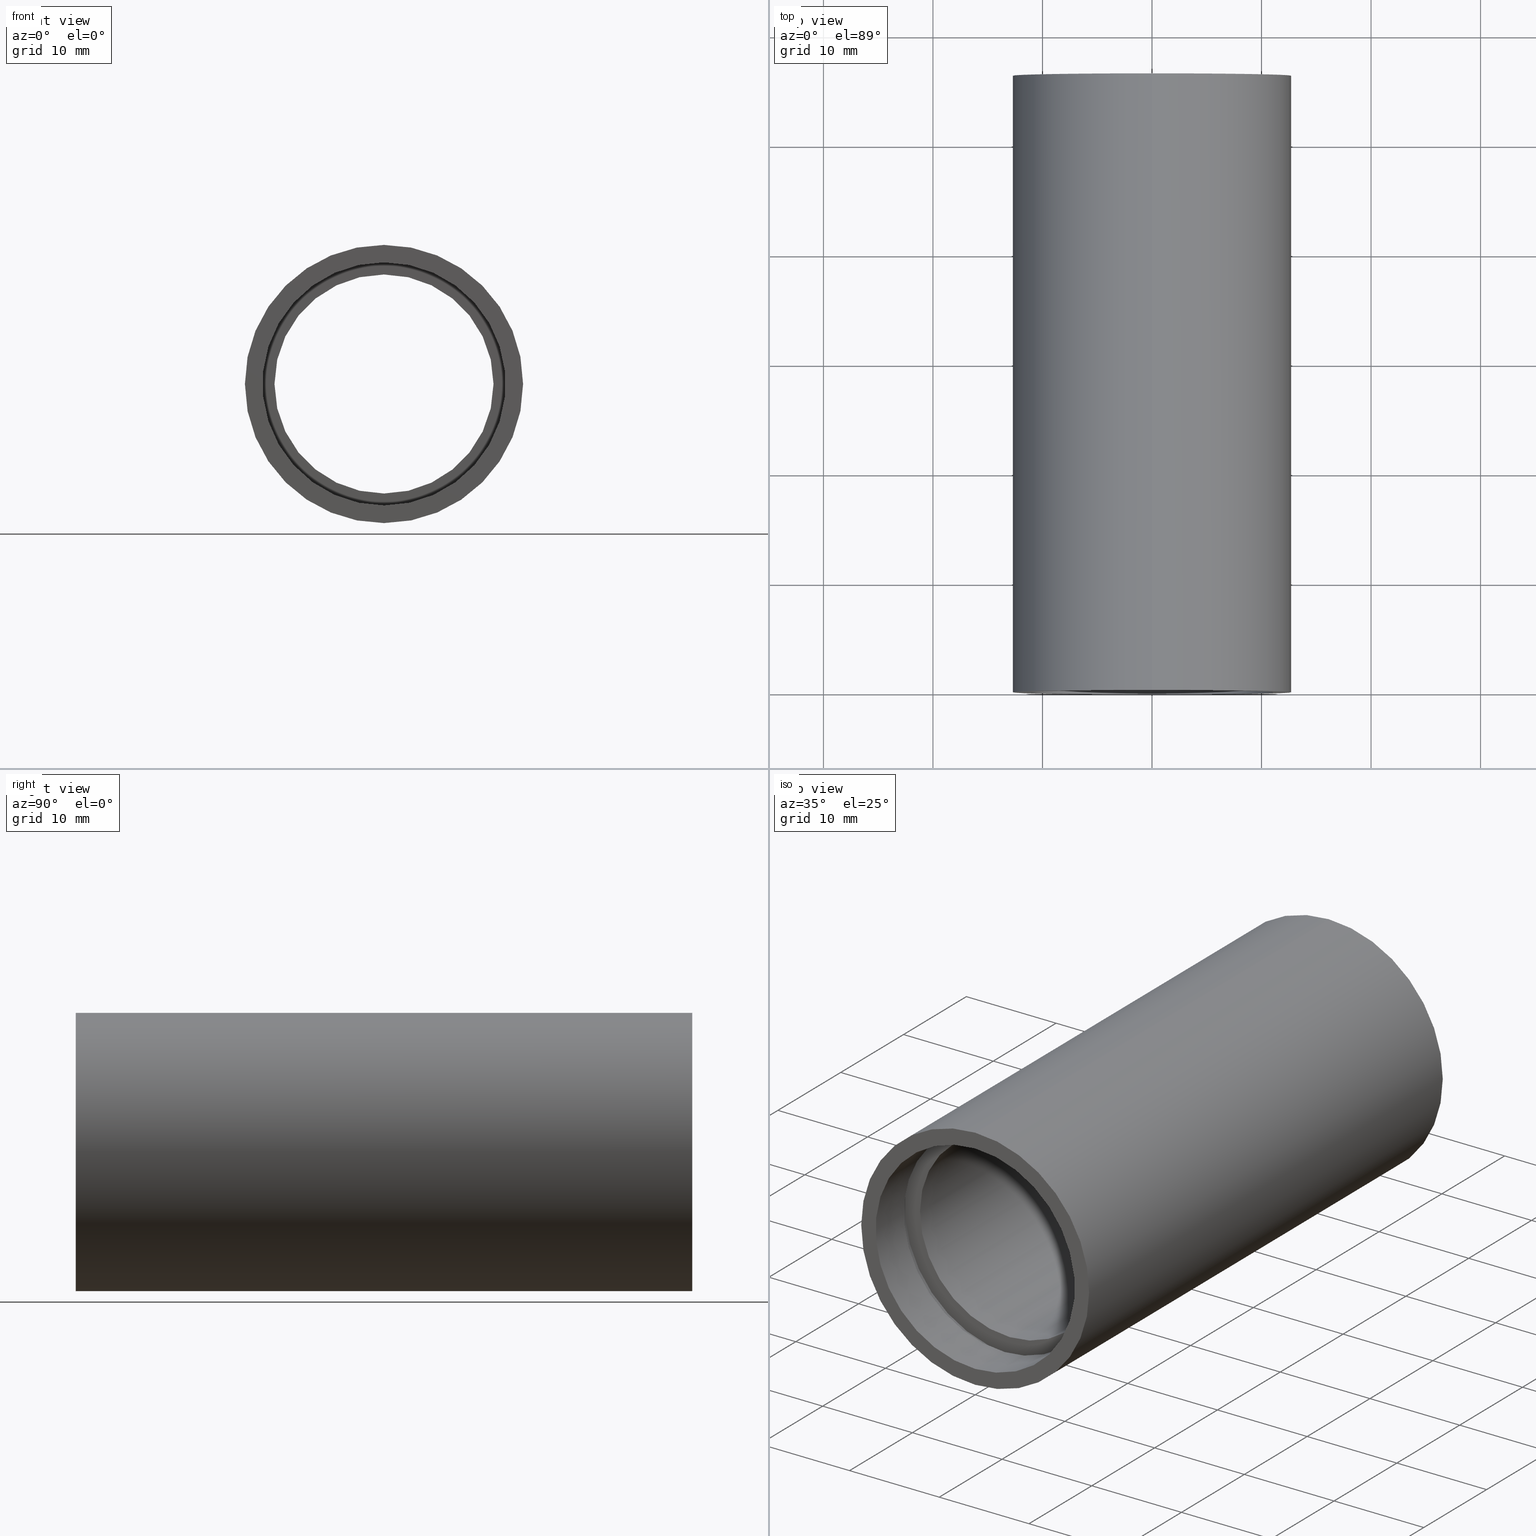
[diagram: canonical four-view strip — front | top / right | iso, engineering-drawing reading convention]
A machine part, canonical four-view strip (front | top / right | iso — engineering-drawing reading convention). The complete STEP part file that produces these views, byte-faithful:
ISO-10303-21;
HEADER;
FILE_DESCRIPTION (( 'STEP AP214' ),
    '1' );
FILE_NAME ('503062.STEP',
    '2019-09-09T02:34:38',
    ( '' ),
    ( '' ),
    'SwSTEP 2.0',
    'SolidWorks 2016',
    '' );
FILE_SCHEMA (( 'AUTOMOTIVE_DESIGN' ));
ENDSEC;

DATA;
#1 = ORIENTED_EDGE ( 'NONE', *, *, #16, .F. ) ;
#2 = DIRECTION ( 'NONE',  ( -0.0000000000000000000, 1.000000000000000000, -0.0000000000000000000 ) ) ;
#3 = FILL_AREA_STYLE_COLOUR ( '', #129 ) ;
#4 = EDGE_LOOP ( 'NONE', ( #275, #221 ) ) ;
#5 = STYLED_ITEM ( 'NONE', ( #70 ), #134 ) ;
#6 = ADVANCED_FACE ( 'NONE', ( #461 ), #346, .F. ) ;
#7 = DIRECTION ( 'NONE',  ( -0.0000000000000000000, 1.000000000000000000, -0.0000000000000000000 ) ) ;
#8 = DIRECTION ( 'NONE',  ( -0.0000000000000000000, 1.000000000000000000, -0.0000000000000000000 ) ) ;
#9 = ADVANCED_FACE ( 'NONE', ( #255, #315 ), #324, .F. ) ;
#10 = DIRECTION ( 'NONE',  ( 0.0000000000000000000, 0.0000000000000000000, 1.000000000000000000 ) ) ;
#11 =( GEOMETRIC_REPRESENTATION_CONTEXT ( 3 ) GLOBAL_UNCERTAINTY_ASSIGNED_CONTEXT ( ( #607 ) ) GLOBAL_UNIT_ASSIGNED_CONTEXT ( ( #344, #345, #291 ) ) REPRESENTATION_CONTEXT ( 'NONE', 'WORKASPACE' ) );
#12 = CARTESIAN_POINT ( 'NONE',  ( 0.0000000000000000000, 161.3761669434274500, 12.70000000000001900 ) ) ;
#13 = DIRECTION ( 'NONE',  ( -0.0000000000000000000, 1.000000000000000000, -0.0000000000000000000 ) ) ;
#14 = STYLED_ITEM ( 'NONE', ( #186 ), #106 ) ;
#15 = DIRECTION ( 'NONE',  ( 0.0000000000000000000, 0.0000000000000000000, 1.000000000000000000 ) ) ;
#16 = EDGE_CURVE ( 'NONE', #595, #178, #398, .T. ) ;
#17 = DIRECTION ( 'NONE',  ( 0.0000000000000000000, 0.0000000000000000000, 1.000000000000000000 ) ) ;
#18 = ORIENTED_EDGE ( 'NONE', *, *, #49, .F. ) ;
#19 = UNCERTAINTY_MEASURE_WITH_UNIT (LENGTH_MEASURE( 1.000000000000000100E-005 ), #364, 'distance_accuracy_value', 'NONE');
#20 = CIRCLE ( 'NONE', #322, 11.70000000000001000 ) ;
#21 = EDGE_LOOP ( 'NONE', ( #514, #173 ) ) ;
#22 = CARTESIAN_POINT ( 'NONE',  ( 11.10000000000001900, 4.499999999999983100, 0.0000000000000000000 ) ) ;
#23 = CIRCLE ( 'NONE', #592, 11.70000000000001000 ) ;
#24 = AXIS2_PLACEMENT_3D ( 'NONE', #101, #2, #384 ) ;
#25 = CARTESIAN_POINT ( 'NONE',  ( 0.0000000000000000000, 5.499999999999976900, 11.70000000000001700 ) ) ;
#26 = CIRCLE ( 'NONE', #531, 12.70000000000001900 ) ;
#27 = PRESENTATION_LAYER_ASSIGNMENT (  '', '', ( #331 ) ) ;
#28 = VECTOR ( 'NONE', #97, 1000.000000000000000 ) ;
#29 =( NAMED_UNIT ( * ) PLANE_ANGLE_UNIT ( ) SI_UNIT ( $, .RADIAN. ) );
#30 = ORIENTED_EDGE ( 'NONE', *, *, #549, .T. ) ;
#31 = PRESENTATION_STYLE_ASSIGNMENT (( #272 ) ) ;
#32 = VERTEX_POINT ( 'NONE', #122 ) ;
#33 = CARTESIAN_POINT ( 'NONE',  ( 0.0000000000000000000, 4.499999999999976000, 0.0000000000000000000 ) ) ;
#34 = FACE_OUTER_BOUND ( 'NONE', #189, .T. ) ;
#35 = CARTESIAN_POINT ( 'NONE',  ( 0.0000000000000000000, 161.3761669434274500, 10.00000000000002000 ) ) ;
#36 = LINE ( 'NONE', #373, #240 ) ;
#37 = VERTEX_POINT ( 'NONE', #417 ) ;
#38 = DIRECTION ( 'NONE',  ( 0.0000000000000000000, 0.0000000000000000000, 1.000000000000000000 ) ) ;
#39 = SURFACE_SIDE_STYLE ('',( #422 ) ) ;
#40 =( NAMED_UNIT ( * ) PLANE_ANGLE_UNIT ( ) SI_UNIT ( $, .RADIAN. ) );
#41 = CARTESIAN_POINT ( 'NONE',  ( 0.0000000000000000000, 56.29999999999999000, 11.60000000000003200 ) ) ;
#42 = APPLICATION_CONTEXT ( 'automotive_design' ) ;
#43 = VERTEX_POINT ( 'NONE', #132 ) ;
#44 = AXIS2_PLACEMENT_3D ( 'NONE', #427, #530, #236 ) ;
#45 = DIRECTION ( 'NONE',  ( 0.0000000000000000000, 0.0000000000000000000, 1.000000000000000000 ) ) ;
#46 = CARTESIAN_POINT ( 'NONE',  ( 0.0000000000000000000, 161.3761669434274500, 11.60000000000003300 ) ) ;
#47 = EDGE_LOOP ( 'NONE', ( #474, #561, #18, #550 ) ) ;
#48 = SURFACE_STYLE_FILL_AREA ( #357 ) ;
#49 = EDGE_CURVE ( 'NONE', #55, #169, #26, .T. ) ;
#50 = VECTOR ( 'NONE', #214, 1000.000000000000000 ) ;
#51 = AXIS2_PLACEMENT_3D ( 'NONE', #320, #67, #17 ) ;
#52 = ORIENTED_EDGE ( 'NONE', *, *, #257, .T. ) ;
#53 = AXIS2_PLACEMENT_3D ( 'NONE', #246, #299, #379 ) ;
#54 = CARTESIAN_POINT ( 'NONE',  ( 0.0000000000000000000, 56.29999999999999000, 0.0000000000000000000 ) ) ;
#55 = VERTEX_POINT ( 'NONE', #469 ) ;
#56 = ADVANCED_FACE ( 'NONE', ( #273 ), #613, .F. ) ;
#57 = VERTEX_POINT ( 'NONE', #156 ) ;
#58 =( GEOMETRIC_REPRESENTATION_CONTEXT ( 3 ) GLOBAL_UNCERTAINTY_ASSIGNED_CONTEXT ( ( #471 ) ) GLOBAL_UNIT_ASSIGNED_CONTEXT ( ( #277, #29, #256 ) ) REPRESENTATION_CONTEXT ( 'NONE', 'WORKASPACE' ) );
#59 = LINE ( 'NONE', #35, #463 ) ;
#60 = VECTOR ( 'NONE', #547, 1000.000000000000000 ) ;
#61 = ORIENTED_EDGE ( 'NONE', *, *, #258, .F. ) ;
#62 = ORIENTED_EDGE ( 'NONE', *, *, #95, .T. ) ;
#63 = DIRECTION ( 'NONE',  ( -0.0000000000000000000, 1.000000000000000000, -0.0000000000000000000 ) ) ;
#64 = ORIENTED_EDGE ( 'NONE', *, *, #161, .F. ) ;
#65 = DIRECTION ( 'NONE',  ( 0.0000000000000000000, 0.0000000000000000000, 1.000000000000000000 ) ) ;
#66 =( NAMED_UNIT ( * ) SI_UNIT ( $, .STERADIAN. ) SOLID_ANGLE_UNIT ( ) );
#67 = DIRECTION ( 'NONE',  ( -0.0000000000000000000, 1.000000000000000000, -0.0000000000000000000 ) ) ;
#68 = DIRECTION ( 'NONE',  ( -0.0000000000000000000, 1.000000000000000000, -0.0000000000000000000 ) ) ;
#69 = CARTESIAN_POINT ( 'NONE',  ( 10.00000000000002000, 50.79999999999997600, 0.0000000000000000000 ) ) ;
#70 = PRESENTATION_STYLE_ASSIGNMENT (( #119 ) ) ;
#71 = FACE_BOUND ( 'NONE', #175, .T. ) ;
#72 = CIRCLE ( 'NONE', #520, 12.70000000000001900 ) ;
#73 = AXIS2_PLACEMENT_3D ( 'NONE', #135, #181, #425 ) ;
#74 = FILL_AREA_STYLE ('',( #612 ) ) ;
#75 = COLOUR_RGB ( '',1.000000000000000000, 1.000000000000000000, 1.000000000000000000 ) ;
#76 = EDGE_CURVE ( 'NONE', #37, #314, #360, .T. ) ;
#77 = CARTESIAN_POINT ( 'NONE',  ( 1.359357947053564500E-015, 161.3761669434274500, -11.10000000000002100 ) ) ;
#78 = EDGE_LOOP ( 'NONE', ( #349, #458, #362, #309 ) ) ;
#79 = EDGE_CURVE ( 'NONE', #435, #57, #600, .T. ) ;
#80 = PRODUCT ( '503062', '503062', '', ( #146 ) ) ;
#81 = ORIENTED_EDGE ( 'NONE', *, *, #359, .F. ) ;
#82 = DIRECTION ( 'NONE',  ( -0.0000000000000000000, 1.000000000000000000, -0.0000000000000000000 ) ) ;
#83 = DIRECTION ( 'NONE',  ( -0.0000000000000000000, 1.000000000000000000, -0.0000000000000000000 ) ) ;
#84 = DIRECTION ( 'NONE',  ( -0.0000000000000000000, 1.000000000000000000, -0.0000000000000000000 ) ) ;
#85 = CARTESIAN_POINT ( 'NONE',  ( 1.359357947053564900E-015, -2.775557561562891400E-014, -11.10000000000002300 ) ) ;
#86 = AXIS2_PLACEMENT_3D ( 'NONE', #243, #96, #581 ) ;
#87 = FILL_AREA_STYLE_COLOUR ( '', #182 ) ;
#88 = VERTEX_POINT ( 'NONE', #206 ) ;
#89 = CYLINDRICAL_SURFACE ( 'NONE', #73, 10.00000000000002000 ) ;
#90 = DIRECTION ( 'NONE',  ( 0.0000000000000000000, 0.0000000000000000000, 1.000000000000000000 ) ) ;
#91 = CIRCLE ( 'NONE', #527, 10.00000000000002000 ) ;
#92 = DIRECTION ( 'NONE',  ( 0.0000000000000000000, 0.0000000000000000000, 1.000000000000000000 ) ) ;
#93 = EDGE_CURVE ( 'NONE', #102, #169, #109, .T. ) ;
#94 = DIRECTION ( 'NONE',  ( 0.0000000000000000000, 0.0000000000000000000, 1.000000000000000000 ) ) ;
#95 = EDGE_CURVE ( 'NONE', #88, #178, #565, .T. ) ;
#96 = DIRECTION ( 'NONE',  ( -0.0000000000000000000, 1.000000000000000000, 0.0000000000000000000 ) ) ;
#97 = DIRECTION ( 'NONE',  ( -0.0000000000000000000, 1.000000000000000000, -0.0000000000000000000 ) ) ;
#98 = CIRCLE ( 'NONE', #366, 11.10000000000002300 ) ;
#99 = ORIENTED_EDGE ( 'NONE', *, *, #462, .T. ) ;
#100 = EDGE_LOOP ( 'NONE', ( #223, #526, #393, #336 ) ) ;
#101 = CARTESIAN_POINT ( 'NONE',  ( 0.0000000000000000000, 161.3761669434274500, 0.0000000000000000000 ) ) ;
#102 = VERTEX_POINT ( 'NONE', #308 ) ;
#103 = CARTESIAN_POINT ( 'NONE',  ( 0.0000000000000000000, -2.775557561562891400E-014, 11.10000000000002300 ) ) ;
#104 = FACE_OUTER_BOUND ( 'NONE', #437, .T. ) ;
#105 = DIRECTION ( 'NONE',  ( -0.0000000000000000000, 1.000000000000000000, -0.0000000000000000000 ) ) ;
#106 = ADVANCED_FACE ( 'NONE', ( #241 ), #591, .F. ) ;
#107 = DIRECTION ( 'NONE',  ( 0.0000000000000000000, 0.0000000000000000000, 1.000000000000000000 ) ) ;
#108 = CARTESIAN_POINT ( 'NONE',  ( 0.0000000000000000000, 50.79999999999998300, 10.00000000000002000 ) ) ;
#109 = LINE ( 'NONE', #312, #60 ) ;
#110 = PRESENTATION_LAYER_ASSIGNMENT (  '', '', ( #252 ) ) ;
#111 = DIRECTION ( 'NONE',  ( -0.0000000000000000000, 1.000000000000000000, -0.0000000000000000000 ) ) ;
#112 = ORIENTED_EDGE ( 'NONE', *, *, #518, .F. ) ;
#113 = DIRECTION ( 'NONE',  ( -0.0000000000000000000, 1.000000000000000000, -0.0000000000000000000 ) ) ;
#114 = DIRECTION ( 'NONE',  ( -0.0000000000000000000, 1.000000000000000000, -0.0000000000000000000 ) ) ;
#115 = EDGE_CURVE ( 'NONE', #539, #558, #340, .T. ) ;
#116 = ORIENTED_EDGE ( 'NONE', *, *, #597, .F. ) ;
#117 = DIRECTION ( 'NONE',  ( 0.0000000000000000000, 0.0000000000000000000, 1.000000000000000000 ) ) ;
#118 = EDGE_CURVE ( 'NONE', #567, #402, #610, .T. ) ;
#119 = SURFACE_STYLE_USAGE ( .BOTH. , #217 ) ;
#120 = AXIS2_PLACEMENT_3D ( 'NONE', #602, #63, #251 ) ;
#121 = FILL_AREA_STYLE_COLOUR ( '', #237 ) ;
#122 = CARTESIAN_POINT ( 'NONE',  ( 1.432836755002405500E-015, 5.499999999999976900, -11.70000000000001700 ) ) ;
#123 = CARTESIAN_POINT ( 'NONE',  ( 0.0000000000000000000, 50.79999999999998300, 11.70000000000001000 ) ) ;
#124 = FACE_OUTER_BOUND ( 'NONE', #47, .T. ) ;
#125 = AXIS2_PLACEMENT_3D ( 'NONE', #535, #244, #90 ) ;
#126 = ADVANCED_FACE ( 'NONE', ( #34, #200 ), #453, .F. ) ;
#127 = MECHANICAL_DESIGN_GEOMETRIC_PRESENTATION_REPRESENTATION (  '', ( #147 ), #624 ) ;
#128 = EDGE_CURVE ( 'NONE', #558, #567, #268, .T. ) ;
#129 = COLOUR_RGB ( '',1.000000000000000000, 1.000000000000000000, 1.000000000000000000 ) ;
#130 = DIRECTION ( 'NONE',  ( 0.0000000000000000000, 0.0000000000000000000, 1.000000000000000000 ) ) ;
#131 = EDGE_LOOP ( 'NONE', ( #1, #64, #606, #62 ) ) ;
#132 = CARTESIAN_POINT ( 'NONE',  ( 0.0000000000000000000, 51.79999999999998300, 11.70000000000001000 ) ) ;
#133 = CARTESIAN_POINT ( 'NONE',  ( 0.0000000000000000000, -2.775557561562891400E-014, 12.70000000000001900 ) ) ;
#134 = MANIFOLD_SOLID_BREP ( '��ת1', #604 ) ;
#135 = CARTESIAN_POINT ( 'NONE',  ( 0.0000000000000000000, 161.3761669434274500, 0.0000000000000000000 ) ) ;
#136 = ORIENTED_EDGE ( 'NONE', *, *, #415, .F. ) ;
#137 = ORIENTED_EDGE ( 'NONE', *, *, #227, .F. ) ;
#138 = DIRECTION ( 'NONE',  ( -0.0000000000000000000, 1.000000000000000000, -0.0000000000000000000 ) ) ;
#139 = PRESENTATION_STYLE_ASSIGNMENT (( #476 ) ) ;
#140 = DIRECTION ( 'NONE',  ( -0.0000000000000000000, 1.000000000000000000, -0.0000000000000000000 ) ) ;
#141 = CARTESIAN_POINT ( 'NONE',  ( 0.0000000000000000000, 4.499999999999976000, 0.0000000000000000000 ) ) ;
#142 = CARTESIAN_POINT ( 'NONE',  ( 0.0000000000000000000, 5.499999999999976900, 10.00000000000002000 ) ) ;
#143 = APPLICATION_PROTOCOL_DEFINITION ( 'draft international standard', 'automotive_design', 1998, #434 ) ;
#144 = AXIS2_PLACEMENT_3D ( 'NONE', #490, #140, #382 ) ;
#145 = CARTESIAN_POINT ( 'NONE',  ( 0.0000000000000000000, -2.775557561562891400E-014, 0.0000000000000000000 ) ) ;
#146 = PRODUCT_CONTEXT ( 'NONE', #434, 'mechanical' ) ;
#147 = STYLED_ITEM ( 'NONE', ( #413 ), #6 ) ;
#148 = CARTESIAN_POINT ( 'NONE',  ( 1.432836755002405500E-015, 161.3761669434274500, -11.70000000000001700 ) ) ;
#149 = ORIENTED_EDGE ( 'NONE', *, *, #498, .F. ) ;
#150 = PRODUCT_RELATED_PRODUCT_CATEGORY ( 'part', '', ( #80 ) ) ;
#151 = FACE_BOUND ( 'NONE', #317, .T. ) ;
#152 = AXIS2_PLACEMENT_3D ( 'NONE', #305, #220, #405 ) ;
#153 = ORIENTED_EDGE ( 'NONE', *, *, #489, .T. ) ;
#154 = ADVANCED_FACE ( 'NONE', ( #378 ), #485, .F. ) ;
#155 = CARTESIAN_POINT ( 'NONE',  ( 11.70000000000001700, 5.499999999999984000, 0.0000000000000000000 ) ) ;
#156 = CARTESIAN_POINT ( 'NONE',  ( 1.224646799147355400E-015, 50.79999999999998300, -10.00000000000002000 ) ) ;
#157 = CARTESIAN_POINT ( 'NONE',  ( 0.0000000000000000000, -2.775557561562891400E-014, 0.0000000000000000000 ) ) ;
#158 = AXIS2_PLACEMENT_3D ( 'NONE', #524, #83, #38 ) ;
#159 = CARTESIAN_POINT ( 'NONE',  ( 0.0000000000000000000, 4.499999999999976000, 0.0000000000000000000 ) ) ;
#160 = FILL_AREA_STYLE_COLOUR ( '', #436 ) ;
#161 = EDGE_CURVE ( 'NONE', #215, #595, #361, .T. ) ;
#162 = PLANE ( 'NONE',  #441 ) ;
#163 = ORIENTED_EDGE ( 'NONE', *, *, #560, .T. ) ;
#164 = EDGE_CURVE ( 'NONE', #374, #55, #211, .T. ) ;
#165 = CYLINDRICAL_SURFACE ( 'NONE', #125, 11.70000000000001700 ) ;
#166 =( NAMED_UNIT ( * ) PLANE_ANGLE_UNIT ( ) SI_UNIT ( $, .RADIAN. ) );
#167 = DIRECTION ( 'NONE',  ( 0.0000000000000000000, 0.0000000000000000000, 1.000000000000000000 ) ) ;
#168 = ORIENTED_EDGE ( 'NONE', *, *, #115, .F. ) ;
#169 = VERTEX_POINT ( 'NONE', #355 ) ;
#170 = DIRECTION ( 'NONE',  ( -0.0000000000000000000, 1.000000000000000000, -0.0000000000000000000 ) ) ;
#171 = DIRECTION ( 'NONE',  ( 0.0000000000000000000, 0.0000000000000000000, 1.000000000000000000 ) ) ;
#172 = FACE_OUTER_BOUND ( 'NONE', #470, .T. ) ;
#173 = ORIENTED_EDGE ( 'NONE', *, *, #462, .F. ) ;
#174 = DIRECTION ( 'NONE',  ( 0.0000000000000000000, 0.0000000000000000000, 1.000000000000000000 ) ) ;
#175 = EDGE_LOOP ( 'NONE', ( #456, #326 ) ) ;
#176 = COLOUR_RGB ( '',1.000000000000000000, 1.000000000000000000, 1.000000000000000000 ) ;
#177 =( NAMED_UNIT ( * ) SI_UNIT ( $, .STERADIAN. ) SOLID_ANGLE_UNIT ( ) );
#178 = VERTEX_POINT ( 'NONE', #204 ) ;
#179 = PRESENTATION_LAYER_ASSIGNMENT (  '', '', ( #14 ) ) ;
#180 = EDGE_LOOP ( 'NONE', ( #488, #335, #163, #61 ) ) ;
#181 = DIRECTION ( 'NONE',  ( -0.0000000000000000000, 1.000000000000000000, -0.0000000000000000000 ) ) ;
#182 = COLOUR_RGB ( '',1.000000000000000000, 1.000000000000000000, 1.000000000000000000 ) ;
#183 = ORIENTED_EDGE ( 'NONE', *, *, #489, .F. ) ;
#184 = EDGE_LOOP ( 'NONE', ( #137, #231, #603, #112 ) ) ;
#185 = DIRECTION ( 'NONE',  ( -0.0000000000000000000, 1.000000000000000000, -0.0000000000000000000 ) ) ;
#186 = PRESENTATION_STYLE_ASSIGNMENT (( #358 ) ) ;
#187 = AXIS2_PLACEMENT_3D ( 'NONE', #33, #82, #523 ) ;
#188 = DIRECTION ( 'NONE',  ( 1.000000000000000000, 0.0000000000000000000, 0.0000000000000000000 ) ) ;
#189 = EDGE_LOOP ( 'NONE', ( #266, #183 ) ) ;
#190 = DIRECTION ( 'NONE',  ( 0.0000000000000000000, 0.0000000000000000000, 1.000000000000000000 ) ) ;
#191 = AXIS2_PLACEMENT_3D ( 'NONE', #416, #274, #608 ) ;
#192 = EDGE_CURVE ( 'NONE', #32, #338, #601, .T. ) ;
#193 = DIRECTION ( 'NONE',  ( -0.0000000000000000000, 1.000000000000000000, -0.0000000000000000000 ) ) ;
#194 = DIRECTION ( 'NONE',  ( -0.0000000000000000000, 1.000000000000000000, -0.0000000000000000000 ) ) ;
#195 = PRODUCT_DEFINITION_FORMATION_WITH_SPECIFIED_SOURCE ( '�κ�', '', #80, .NOT_KNOWN. ) ;
#196 = CYLINDRICAL_SURFACE ( 'NONE', #540, 11.10000000000002100 ) ;
#197 = ORIENTED_EDGE ( 'NONE', *, *, #93, .F. ) ;
#198 = DIRECTION ( 'NONE',  ( 0.0000000000000000000, 0.0000000000000000000, 1.000000000000000000 ) ) ;
#199 = CARTESIAN_POINT ( 'NONE',  ( 0.0000000000000000000, 161.3761669434274500, 0.0000000000000000000 ) ) ;
#200 = FACE_BOUND ( 'NONE', #568, .T. ) ;
#201 = DIRECTION ( 'NONE',  ( -0.0000000000000000000, 1.000000000000000000, -0.0000000000000000000 ) ) ;
#202 = SURFACE_STYLE_FILL_AREA ( #74 ) ;
#203 = CIRCLE ( 'NONE', #225, 12.70000000000001900 ) ;
#204 = CARTESIAN_POINT ( 'NONE',  ( 1.359357947053564500E-015, 4.499999999999976000, -11.10000000000001900 ) ) ;
#205 = ADVANCED_FACE ( 'NONE', ( #316, #151 ), #162, .F. ) ;
#206 = CARTESIAN_POINT ( 'NONE',  ( 0.0000000000000000000, 4.499999999999976000, 11.10000000000001900 ) ) ;
#207 = CARTESIAN_POINT ( 'NONE',  ( 0.0000000000000000000, 50.79999999999998300, 0.0000000000000000000 ) ) ;
#208 = AXIS2_PLACEMENT_3D ( 'NONE', #579, #293, #430 ) ;
#209 = DIRECTION ( 'NONE',  ( -0.0000000000000000000, 1.000000000000000000, -0.0000000000000000000 ) ) ;
#210 = CARTESIAN_POINT ( 'NONE',  ( 1.432836755002404700E-015, 51.79999999999998300, -11.70000000000001000 ) ) ;
#211 = LINE ( 'NONE', #12, #228 ) ;
#212 = EDGE_LOOP ( 'NONE', ( #431, #544, #562, #576 ) ) ;
#213 = ORIENTED_EDGE ( 'NONE', *, *, #451, .F. ) ;
#214 = DIRECTION ( 'NONE',  ( -0.0000000000000000000, 1.000000000000000000, -0.0000000000000000000 ) ) ;
#215 = VERTEX_POINT ( 'NONE', #103 ) ;
#216 = CARTESIAN_POINT ( 'NONE',  ( 0.0000000000000000000, -2.775557561562891400E-014, 0.0000000000000000000 ) ) ;
#217 = SURFACE_SIDE_STYLE ('',( #222 ) ) ;
#218 = AXIS2_PLACEMENT_3D ( 'NONE', #157, #501, #493 ) ;
#219 =( LENGTH_UNIT ( ) NAMED_UNIT ( * ) SI_UNIT ( .MILLI., .METRE. ) );
#220 = DIRECTION ( 'NONE',  ( -0.0000000000000000000, 1.000000000000000000, 0.0000000000000000000 ) ) ;
#221 = ORIENTED_EDGE ( 'NONE', *, *, #359, .T. ) ;
#222 = SURFACE_STYLE_FILL_AREA ( #506 ) ;
#223 = ORIENTED_EDGE ( 'NONE', *, *, #296, .F. ) ;
#224 = CIRCLE ( 'NONE', #187, 11.70000000000001700 ) ;
#225 = AXIS2_PLACEMENT_3D ( 'NONE', #145, #193, #45 ) ;
#226 = AXIS2_PLACEMENT_3D ( 'NONE', #22, #509, #333 ) ;
#227 = EDGE_CURVE ( 'NONE', #558, #539, #403, .T. ) ;
#228 = VECTOR ( 'NONE', #201, 1000.000000000000000 ) ;
#229 = SURFACE_SIDE_STYLE ('',( #483 ) ) ;
#230 = ORIENTED_EDGE ( 'NONE', *, *, #560, .F. ) ;
#231 = ORIENTED_EDGE ( 'NONE', *, *, #128, .T. ) ;
#232 = FILL_AREA_STYLE_COLOUR ( '', #176 ) ;
#233 = ORIENTED_EDGE ( 'NONE', *, *, #582, .F. ) ;
#234 = DIRECTION ( 'NONE',  ( 0.0000000000000000000, 0.0000000000000000000, 1.000000000000000000 ) ) ;
#235 =( LENGTH_UNIT ( ) NAMED_UNIT ( * ) SI_UNIT ( .MILLI., .METRE. ) );
#236 = DIRECTION ( 'NONE',  ( 0.0000000000000000000, 0.0000000000000000000, 1.000000000000000000 ) ) ;
#237 = COLOUR_RGB ( '',1.000000000000000000, 1.000000000000000000, 1.000000000000000000 ) ;
#238 = CARTESIAN_POINT ( 'NONE',  ( 1.224646799147355400E-015, 5.499999999999976900, -10.00000000000002000 ) ) ;
#239 =( NAMED_UNIT ( * ) PLANE_ANGLE_UNIT ( ) SI_UNIT ( $, .RADIAN. ) );
#240 = VECTOR ( 'NONE', #170, 1000.000000000000000 ) ;
#241 = FACE_OUTER_BOUND ( 'NONE', #350, .T. ) ;
#242 = AXIS2_PLACEMENT_3D ( 'NONE', #141, #580, #387 ) ;
#243 = CARTESIAN_POINT ( 'NONE',  ( 11.10000000000002300, -1.590039098016662300E-014, 0.0000000000000000000 ) ) ;
#244 = DIRECTION ( 'NONE',  ( -0.0000000000000000000, 1.000000000000000000, -0.0000000000000000000 ) ) ;
#245 = EDGE_LOOP ( 'NONE', ( #197, #99, #536, #81 ) ) ;
#246 = CARTESIAN_POINT ( 'NONE',  ( 0.0000000000000000000, 50.79999999999998300, 0.0000000000000000000 ) ) ;
#247 = UNCERTAINTY_MEASURE_WITH_UNIT (LENGTH_MEASURE( 1.000000000000000100E-005 ), #457, 'distance_accuracy_value', 'NONE');
#248 = MECHANICAL_DESIGN_GEOMETRIC_PRESENTATION_REPRESENTATION (  '', ( #14 ), #392 ) ;
#249 = DIRECTION ( 'NONE',  ( -0.0000000000000000000, 1.000000000000000000, 0.0000000000000000000 ) ) ;
#250 = COLOUR_RGB ( '',1.000000000000000000, 1.000000000000000000, 1.000000000000000000 ) ;
#251 = DIRECTION ( 'NONE',  ( 0.0000000000000000000, 0.0000000000000000000, 1.000000000000000000 ) ) ;
#252 = STYLED_ITEM ( 'NONE', ( #139 ), #444 ) ;
#253 = UNCERTAINTY_MEASURE_WITH_UNIT (LENGTH_MEASURE( 1.000000000000000100E-005 ), #529, 'distance_accuracy_value', 'NONE');
#254 = ADVANCED_FACE ( 'NONE', ( #466 ), #584, .F. ) ;
#255 = FACE_BOUND ( 'NONE', #522, .T. ) ;
#256 =( NAMED_UNIT ( * ) SI_UNIT ( $, .STERADIAN. ) SOLID_ANGLE_UNIT ( ) );
#257 = EDGE_CURVE ( 'NONE', #329, #409, #20, .T. ) ;
#258 = EDGE_CURVE ( 'NONE', #215, #88, #347, .T. ) ;
#259 = ORIENTED_EDGE ( 'NONE', *, *, #227, .T. ) ;
#260 =( NAMED_UNIT ( * ) SI_UNIT ( $, .STERADIAN. ) SOLID_ANGLE_UNIT ( ) );
#261 = FILL_AREA_STYLE_COLOUR ( '', #75 ) ;
#262 = CARTESIAN_POINT ( 'NONE',  ( 0.0000000000000000000, 4.499999999999976000, 0.0000000000000000000 ) ) ;
#263 = CARTESIAN_POINT ( 'NONE',  ( 0.0000000000000000000, -2.775557561562891400E-014, 0.0000000000000000000 ) ) ;
#264 = PLANE ( 'NONE',  #447 ) ;
#265 =( NAMED_UNIT ( * ) SI_UNIT ( $, .STERADIAN. ) SOLID_ANGLE_UNIT ( ) );
#266 = ORIENTED_EDGE ( 'NONE', *, *, #389, .F. ) ;
#267 =( NAMED_UNIT ( * ) SI_UNIT ( $, .STERADIAN. ) SOLID_ANGLE_UNIT ( ) );
#268 = LINE ( 'NONE', #369, #406 ) ;
#269 = DIRECTION ( 'NONE',  ( 0.0000000000000000000, -0.0000000000000000000, -1.000000000000000000 ) ) ;
#270 = PRODUCT_DEFINITION_CONTEXT ( 'detailed design', #42, 'design' ) ;
#271 = CYLINDRICAL_SURFACE ( 'NONE', #24, 12.70000000000001900 ) ;
#272 = SURFACE_STYLE_USAGE ( .BOTH. , #365 ) ;
#273 = FACE_OUTER_BOUND ( 'NONE', #131, .T. ) ;
#274 = DIRECTION ( 'NONE',  ( -0.0000000000000000000, 1.000000000000000000, -0.0000000000000000000 ) ) ;
#275 = ORIENTED_EDGE ( 'NONE', *, *, #49, .T. ) ;
#276 = FACE_OUTER_BOUND ( 'NONE', #212, .T. ) ;
#277 =( LENGTH_UNIT ( ) NAMED_UNIT ( * ) SI_UNIT ( .MILLI., .METRE. ) );
#278 = DIRECTION ( 'NONE',  ( -0.0000000000000000000, 1.000000000000000000, -0.0000000000000000000 ) ) ;
#279 = ORIENTED_EDGE ( 'NONE', *, *, #498, .T. ) ;
#280 =( NAMED_UNIT ( * ) PLANE_ANGLE_UNIT ( ) SI_UNIT ( $, .RADIAN. ) );
#281 = EDGE_CURVE ( 'NONE', #409, #289, #452, .T. ) ;
#282 = SURFACE_STYLE_FILL_AREA ( #313 ) ;
#283 = PRESENTATION_LAYER_ASSIGNMENT (  '', '', ( #454 ) ) ;
#284 = PRESENTATION_STYLE_ASSIGNMENT (( #477 ) ) ;
#285 = AXIS2_PLACEMENT_3D ( 'NONE', #542, #598, #10 ) ;
#286 = DIRECTION ( 'NONE',  ( -0.0000000000000000000, 1.000000000000000000, -0.0000000000000000000 ) ) ;
#287 = DIRECTION ( 'NONE',  ( 0.0000000000000000000, 0.0000000000000000000, 1.000000000000000000 ) ) ;
#288 = LINE ( 'NONE', #46, #433 ) ;
#289 = VERTEX_POINT ( 'NONE', #210 ) ;
#290 = DIRECTION ( 'NONE',  ( 0.0000000000000000000, 0.0000000000000000000, 1.000000000000000000 ) ) ;
#291 =( NAMED_UNIT ( * ) SI_UNIT ( $, .STERADIAN. ) SOLID_ANGLE_UNIT ( ) );
#292 = AXIS2_PLACEMENT_3D ( 'NONE', #337, #138, #290 ) ;
#293 = DIRECTION ( 'NONE',  ( -0.0000000000000000000, 1.000000000000000000, -0.0000000000000000000 ) ) ;
#294 = EDGE_CURVE ( 'NONE', #595, #215, #98, .T. ) ;
#295 = DIRECTION ( 'NONE',  ( -0.0000000000000000000, 1.000000000000000000, -0.0000000000000000000 ) ) ;
#296 = EDGE_CURVE ( 'NONE', #435, #467, #537, .T. ) ;
#297 = MECHANICAL_DESIGN_GEOMETRIC_PRESENTATION_REPRESENTATION (  '', ( #5 ), #334 ) ;
#298 = VERTEX_POINT ( 'NONE', #108 ) ;
#299 = DIRECTION ( 'NONE',  ( -0.0000000000000000000, 1.000000000000000000, -0.0000000000000000000 ) ) ;
#300 = EDGE_LOOP ( 'NONE', ( #363, #504 ) ) ;
#301 = SHAPE_DEFINITION_REPRESENTATION ( #621, #618 ) ;
#302 = CIRCLE ( 'NONE', #242, 11.10000000000001900 ) ;
#303 = EDGE_LOOP ( 'NONE', ( #136, #213 ) ) ;
#304 = ADVANCED_FACE ( 'NONE', ( #421 ), #196, .F. ) ;
#305 = CARTESIAN_POINT ( 'NONE',  ( 11.60000000000003300, 51.79999999999997600, 0.0000000000000000000 ) ) ;
#306 = CARTESIAN_POINT ( 'NONE',  ( 0.0000000000000000000, 161.3761669434274500, 0.0000000000000000000 ) ) ;
#307 = ADVANCED_FACE ( 'NONE', ( #508, #432 ), #557, .F. ) ;
#308 = CARTESIAN_POINT ( 'NONE',  ( 1.555301434917140800E-015, -2.775557561562891400E-014, -12.70000000000001900 ) ) ;
#309 = ORIENTED_EDGE ( 'NONE', *, *, #389, .T. ) ;
#310 = CIRCLE ( 'NONE', #208, 10.00000000000002000 ) ;
#311 = DIRECTION ( 'NONE',  ( -0.0000000000000000000, 1.000000000000000000, -0.0000000000000000000 ) ) ;
#312 = CARTESIAN_POINT ( 'NONE',  ( 1.555301434917140800E-015, 161.3761669434274500, -12.70000000000001900 ) ) ;
#313 = FILL_AREA_STYLE ('',( #261 ) ) ;
#314 = VERTEX_POINT ( 'NONE', #510 ) ;
#315 = FACE_OUTER_BOUND ( 'NONE', #619, .T. ) ;
#316 = FACE_OUTER_BOUND ( 'NONE', #300, .T. ) ;
#317 = EDGE_LOOP ( 'NONE', ( #521, #445 ) ) ;
#318 = ORIENTED_EDGE ( 'NONE', *, *, #118, .F. ) ;
#319 = EDGE_CURVE ( 'NONE', #329, #43, #36, .T. ) ;
#320 = CARTESIAN_POINT ( 'NONE',  ( 0.0000000000000000000, 161.3761669434274500, 0.0000000000000000000 ) ) ;
#321 = UNCERTAINTY_MEASURE_WITH_UNIT (LENGTH_MEASURE( 1.000000000000000100E-005 ), #235, 'distance_accuracy_value', 'NONE');
#322 = AXIS2_PLACEMENT_3D ( 'NONE', #207, #311, #15 ) ;
#323 = SURFACE_STYLE_FILL_AREA ( #478 ) ;
#324 = PLANE ( 'NONE',  #226 ) ;
#325 = ORIENTED_EDGE ( 'NONE', *, *, #79, .F. ) ;
#326 = ORIENTED_EDGE ( 'NONE', *, *, #294, .T. ) ;
#327 =( NAMED_UNIT ( * ) PLANE_ANGLE_UNIT ( ) SI_UNIT ( $, .RADIAN. ) );
#328 = AXIS2_PLACEMENT_3D ( 'NONE', #390, #194, #583 ) ;
#329 = VERTEX_POINT ( 'NONE', #123 ) ;
#330 = CIRCLE ( 'NONE', #513, 12.70000000000001900 ) ;
#331 = STYLED_ITEM ( 'NONE', ( #512 ), #56 ) ;
#332 = EDGE_CURVE ( 'NONE', #374, #102, #72, .T. ) ;
#333 = DIRECTION ( 'NONE',  ( 0.0000000000000000000, -0.0000000000000000000, -1.000000000000000000 ) ) ;
#334 =( GEOMETRIC_REPRESENTATION_CONTEXT ( 3 ) GLOBAL_UNCERTAINTY_ASSIGNED_CONTEXT ( ( #247 ) ) GLOBAL_UNIT_ASSIGNED_CONTEXT ( ( #457, #459, #265 ) ) REPRESENTATION_CONTEXT ( 'NONE', 'WORKASPACE' ) );
#335 = ORIENTED_EDGE ( 'NONE', *, *, #16, .T. ) ;
#336 = ORIENTED_EDGE ( 'NONE', *, *, #386, .F. ) ;
#337 = CARTESIAN_POINT ( 'NONE',  ( 0.0000000000000000000, 161.3761669434274500, 0.0000000000000000000 ) ) ;
#338 = VERTEX_POINT ( 'NONE', #25 ) ;
#339 = PLANE ( 'NONE',  #86 ) ;
#340 = CIRCLE ( 'NONE', #120, 11.60000000000003300 ) ;
#341 = COLOUR_RGB ( '',1.000000000000000000, 1.000000000000000000, 1.000000000000000000 ) ;
#342 = CYLINDRICAL_SURFACE ( 'NONE', #44, 12.70000000000001900 ) ;
#343 = CARTESIAN_POINT ( 'NONE',  ( 0.0000000000000000000, 5.499999999999976900, 0.0000000000000000000 ) ) ;
#344 =( LENGTH_UNIT ( ) NAMED_UNIT ( * ) SI_UNIT ( .MILLI., .METRE. ) );
#345 =( NAMED_UNIT ( * ) PLANE_ANGLE_UNIT ( ) SI_UNIT ( $, .RADIAN. ) );
#346 = CYLINDRICAL_SURFACE ( 'NONE', #191, 10.00000000000002000 ) ;
#347 = LINE ( 'NONE', #399, #551 ) ;
#348 = CARTESIAN_POINT ( 'NONE',  ( 1.420590287010933900E-015, 51.79999999999998300, -11.60000000000003300 ) ) ;
#349 = ORIENTED_EDGE ( 'NONE', *, *, #281, .F. ) ;
#350 = EDGE_LOOP ( 'NONE', ( #468, #168, #377, #279 ) ) ;
#351 = EDGE_CURVE ( 'NONE', #338, #32, #380, .T. ) ;
#352 = STYLED_ITEM ( 'NONE', ( #31 ), #304 ) ;
#353 = ORIENTED_EDGE ( 'NONE', *, *, #415, .T. ) ;
#354 = ADVANCED_FACE ( 'NONE', ( #371, #104 ), #264, .F. ) ;
#355 = CARTESIAN_POINT ( 'NONE',  ( 1.555301434917140800E-015, 56.29999999999999000, -12.70000000000001900 ) ) ;
#356 = CIRCLE ( 'NONE', #611, 11.70000000000001000 ) ;
#357 = FILL_AREA_STYLE ('',( #160 ) ) ;
#358 = SURFACE_STYLE_USAGE ( .BOTH. , #545 ) ;
#359 = EDGE_CURVE ( 'NONE', #169, #55, #330, .T. ) ;
#360 = CIRCLE ( 'NONE', #515, 11.70000000000001700 ) ;
#361 = CIRCLE ( 'NONE', #218, 11.10000000000002300 ) ;
#362 = ORIENTED_EDGE ( 'NONE', *, *, #319, .T. ) ;
#363 = ORIENTED_EDGE ( 'NONE', *, *, #351, .F. ) ;
#364 =( LENGTH_UNIT ( ) NAMED_UNIT ( * ) SI_UNIT ( .MILLI., .METRE. ) );
#365 = SURFACE_SIDE_STYLE ('',( #282 ) ) ;
#366 = AXIS2_PLACEMENT_3D ( 'NONE', #263, #113, #167 ) ;
#367 = DIRECTION ( 'NONE',  ( 0.0000000000000000000, 0.0000000000000000000, 1.000000000000000000 ) ) ;
#368 = UNCERTAINTY_MEASURE_WITH_UNIT (LENGTH_MEASURE( 1.000000000000000100E-005 ), #219, 'distance_accuracy_value', 'NONE');
#369 = CARTESIAN_POINT ( 'NONE',  ( 1.420590287010933900E-015, 161.3761669434274500, -11.60000000000003300 ) ) ;
#370 = DIRECTION ( 'NONE',  ( 0.0000000000000000000, 0.0000000000000000000, 1.000000000000000000 ) ) ;
#371 = FACE_BOUND ( 'NONE', #303, .T. ) ;
#372 = SURFACE_STYLE_USAGE ( .BOTH. , #507 ) ;
#373 = CARTESIAN_POINT ( 'NONE',  ( 0.0000000000000000000, 161.3761669434274500, 11.70000000000001000 ) ) ;
#374 = VERTEX_POINT ( 'NONE', #133 ) ;
#375 = FILL_AREA_STYLE ('',( #232 ) ) ;
#376 = AXIS2_PLACEMENT_3D ( 'NONE', #306, #7, #500 ) ;
#377 = ORIENTED_EDGE ( 'NONE', *, *, #518, .T. ) ;
#378 = FACE_OUTER_BOUND ( 'NONE', #78, .T. ) ;
#379 = DIRECTION ( 'NONE',  ( 0.0000000000000000000, 0.0000000000000000000, 1.000000000000000000 ) ) ;
#380 = CIRCLE ( 'NONE', #588, 11.70000000000001700 ) ;
#381 = CARTESIAN_POINT ( 'NONE',  ( 1.432836755002404700E-015, 50.79999999999998300, -11.70000000000001000 ) ) ;
#382 = DIRECTION ( 'NONE',  ( 0.0000000000000000000, 0.0000000000000000000, 1.000000000000000000 ) ) ;
#383 = STYLED_ITEM ( 'NONE', ( #479 ), #397 ) ;
#384 = DIRECTION ( 'NONE',  ( 0.0000000000000000000, 0.0000000000000000000, 1.000000000000000000 ) ) ;
#385 = VECTOR ( 'NONE', #111, 1000.000000000000000 ) ;
#386 = EDGE_CURVE ( 'NONE', #467, #298, #59, .T. ) ;
#387 = DIRECTION ( 'NONE',  ( 0.0000000000000000000, 0.0000000000000000000, 1.000000000000000000 ) ) ;
#388 = EDGE_LOOP ( 'NONE', ( #149, #318 ) ) ;
#389 = EDGE_CURVE ( 'NONE', #43, #289, #356, .T. ) ;
#390 = CARTESIAN_POINT ( 'NONE',  ( 0.0000000000000000000, 56.29999999999999000, 0.0000000000000000000 ) ) ;
#391 =( GEOMETRIC_REPRESENTATION_CONTEXT ( 3 ) GLOBAL_UNCERTAINTY_ASSIGNED_CONTEXT ( ( #253 ) ) GLOBAL_UNIT_ASSIGNED_CONTEXT ( ( #529, #239, #574 ) ) REPRESENTATION_CONTEXT ( 'NONE', 'WORKASPACE' ) );
#392 =( GEOMETRIC_REPRESENTATION_CONTEXT ( 3 ) GLOBAL_UNCERTAINTY_ASSIGNED_CONTEXT ( ( #19 ) ) GLOBAL_UNIT_ASSIGNED_CONTEXT ( ( #364, #166, #260 ) ) REPRESENTATION_CONTEXT ( 'NONE', 'WORKASPACE' ) );
#393 = ORIENTED_EDGE ( 'NONE', *, *, #451, .T. ) ;
#394 = ORIENTED_EDGE ( 'NONE', *, *, #115, .T. ) ;
#395 = ADVANCED_FACE ( 'NONE', ( #525 ), #342, .T. ) ;
#396 = LINE ( 'NONE', #148, #497 ) ;
#397 = ADVANCED_FACE ( 'NONE', ( #563 ), #89, .F. ) ;
#398 = LINE ( 'NONE', #77, #465 ) ;
#399 = CARTESIAN_POINT ( 'NONE',  ( 0.0000000000000000000, 161.3761669434274500, 11.10000000000002100 ) ) ;
#400 = DIRECTION ( 'NONE',  ( -0.0000000000000000000, 1.000000000000000000, -0.0000000000000000000 ) ) ;
#401 = DIRECTION ( 'NONE',  ( -0.0000000000000000000, 1.000000000000000000, -0.0000000000000000000 ) ) ;
#402 = VERTEX_POINT ( 'NONE', #41 ) ;
#403 = CIRCLE ( 'NONE', #285, 11.60000000000003300 ) ;
#404 = ORIENTED_EDGE ( 'NONE', *, *, #449, .T. ) ;
#405 = DIRECTION ( 'NONE',  ( 0.0000000000000000000, 0.0000000000000000000, 1.000000000000000000 ) ) ;
#406 = VECTOR ( 'NONE', #553, 1000.000000000000000 ) ;
#407 = AXIS2_PLACEMENT_3D ( 'NONE', #199, #114, #367 ) ;
#408 = CARTESIAN_POINT ( 'NONE',  ( 0.0000000000000000000, 161.3761669434274500, 0.0000000000000000000 ) ) ;
#409 = VERTEX_POINT ( 'NONE', #381 ) ;
#410 =( NAMED_UNIT ( * ) PLANE_ANGLE_UNIT ( ) SI_UNIT ( $, .RADIAN. ) );
#411 = CARTESIAN_POINT ( 'NONE',  ( 11.60000000000003200, 56.29999999999998300, 0.0000000000000000000 ) ) ;
#412 = MECHANICAL_DESIGN_GEOMETRIC_PRESENTATION_REPRESENTATION (  '', ( #383 ), #543 ) ;
#413 = PRESENTATION_STYLE_ASSIGNMENT (( #372 ) ) ;
#414 = SURFACE_STYLE_FILL_AREA ( #572 ) ;
#415 = EDGE_CURVE ( 'NONE', #298, #57, #596, .T. ) ;
#416 = CARTESIAN_POINT ( 'NONE',  ( 0.0000000000000000000, 161.3761669434274500, 0.0000000000000000000 ) ) ;
#417 = CARTESIAN_POINT ( 'NONE',  ( 1.432836755002405500E-015, 4.499999999999976000, -11.70000000000001700 ) ) ;
#418 = PRODUCT_DEFINITION ( 'δ֪', '', #195, #270 ) ;
#419 = AXIS2_PLACEMENT_3D ( 'NONE', #450, #401, #117 ) ;
#420 = ORIENTED_EDGE ( 'NONE', *, *, #95, .F. ) ;
#421 = FACE_OUTER_BOUND ( 'NONE', #180, .T. ) ;
#422 = SURFACE_STYLE_FILL_AREA ( #487 ) ;
#423 = UNCERTAINTY_MEASURE_WITH_UNIT (LENGTH_MEASURE( 1.000000000000000100E-005 ), #554, 'distance_accuracy_value', 'NONE');
#424 = FACE_OUTER_BOUND ( 'NONE', #21, .T. ) ;
#425 = DIRECTION ( 'NONE',  ( 0.0000000000000000000, 0.0000000000000000000, 1.000000000000000000 ) ) ;
#426 = CARTESIAN_POINT ( 'NONE',  ( 0.0000000000000000000, 161.3761669434274500, 11.70000000000001700 ) ) ;
#427 = CARTESIAN_POINT ( 'NONE',  ( 0.0000000000000000000, 161.3761669434274500, 0.0000000000000000000 ) ) ;
#428 = PRESENTATION_LAYER_ASSIGNMENT (  '', '', ( #147 ) ) ;
#429 = CARTESIAN_POINT ( 'NONE',  ( 0.0000000000000000000, 0.0000000000000000000, 0.0000000000000000000 ) ) ;
#430 = DIRECTION ( 'NONE',  ( 0.0000000000000000000, 0.0000000000000000000, 1.000000000000000000 ) ) ;
#431 = ORIENTED_EDGE ( 'NONE', *, *, #549, .F. ) ;
#432 = FACE_OUTER_BOUND ( 'NONE', #4, .T. ) ;
#433 = VECTOR ( 'NONE', #295, 1000.000000000000000 ) ;
#434 = APPLICATION_CONTEXT ( 'automotive_design' ) ;
#435 = VERTEX_POINT ( 'NONE', #238 ) ;
#436 = COLOUR_RGB ( '',1.000000000000000000, 1.000000000000000000, 1.000000000000000000 ) ;
#437 = EDGE_LOOP ( 'NONE', ( #52, #589 ) ) ;
#438 = ORIENTED_EDGE ( 'NONE', *, *, #281, .T. ) ;
#439 = EDGE_CURVE ( 'NONE', #467, #435, #91, .T. ) ;
#440 = EDGE_LOOP ( 'NONE', ( #442, #30, #586, #116 ) ) ;
#441 = AXIS2_PLACEMENT_3D ( 'NONE', #155, #249, #590 ) ;
#442 = ORIENTED_EDGE ( 'NONE', *, *, #76, .F. ) ;
#443 = CARTESIAN_POINT ( 'NONE',  ( 0.0000000000000000000, 161.3761669434274500, 0.0000000000000000000 ) ) ;
#444 = ADVANCED_FACE ( 'NONE', ( #446 ), #546, .F. ) ;
#445 = ORIENTED_EDGE ( 'NONE', *, *, #296, .T. ) ;
#446 = FACE_OUTER_BOUND ( 'NONE', #184, .T. ) ;
#447 = AXIS2_PLACEMENT_3D ( 'NONE', #69, #516, #555 ) ;
#448 = CARTESIAN_POINT ( 'NONE',  ( 1.224646799147355400E-015, 161.3761669434274500, -10.00000000000002000 ) ) ;
#449 = EDGE_CURVE ( 'NONE', #314, #37, #224, .T. ) ;
#450 = CARTESIAN_POINT ( 'NONE',  ( 0.0000000000000000000, 5.499999999999976900, 0.0000000000000000000 ) ) ;
#451 = EDGE_CURVE ( 'NONE', #57, #298, #310, .T. ) ;
#452 = LINE ( 'NONE', #502, #50 ) ;
#453 = PLANE ( 'NONE',  #152 ) ;
#454 = STYLED_ITEM ( 'NONE', ( #284 ), #618 ) ;
#455 = PRESENTATION_LAYER_ASSIGNMENT (  '', '', ( #5 ) ) ;
#456 = ORIENTED_EDGE ( 'NONE', *, *, #161, .T. ) ;
#457 =( LENGTH_UNIT ( ) NAMED_UNIT ( * ) SI_UNIT ( .MILLI., .METRE. ) );
#458 = ORIENTED_EDGE ( 'NONE', *, *, #257, .F. ) ;
#459 =( NAMED_UNIT ( * ) PLANE_ANGLE_UNIT ( ) SI_UNIT ( $, .RADIAN. ) );
#460 = DIRECTION ( 'NONE',  ( 0.0000000000000000000, -1.000000000000000000, 0.0000000000000000000 ) ) ;
#461 = FACE_OUTER_BOUND ( 'NONE', #571, .T. ) ;
#462 = EDGE_CURVE ( 'NONE', #102, #374, #203, .T. ) ;
#463 = VECTOR ( 'NONE', #84, 1000.000000000000000 ) ;
#464 = DIRECTION ( 'NONE',  ( -0.0000000000000000000, 1.000000000000000000, -0.0000000000000000000 ) ) ;
#465 = VECTOR ( 'NONE', #464, 1000.000000000000000 ) ;
#466 = FACE_OUTER_BOUND ( 'NONE', #440, .T. ) ;
#467 = VERTEX_POINT ( 'NONE', #142 ) ;
#468 = ORIENTED_EDGE ( 'NONE', *, *, #128, .F. ) ;
#469 = CARTESIAN_POINT ( 'NONE',  ( 0.0000000000000000000, 56.29999999999999000, 12.70000000000001900 ) ) ;
#470 = EDGE_LOOP ( 'NONE', ( #233, #438, #153, #503 ) ) ;
#471 = UNCERTAINTY_MEASURE_WITH_UNIT (LENGTH_MEASURE( 1.000000000000000100E-005 ), #277, 'distance_accuracy_value', 'NONE');
#472 =( LENGTH_UNIT ( ) NAMED_UNIT ( * ) SI_UNIT ( .MILLI., .METRE. ) );
#473 = FILL_AREA_STYLE_COLOUR ( '', #250 ) ;
#474 = ORIENTED_EDGE ( 'NONE', *, *, #332, .T. ) ;
#475 = MECHANICAL_DESIGN_GEOMETRIC_PRESENTATION_REPRESENTATION (  '', ( #352 ), #552 ) ;
#476 = SURFACE_STYLE_USAGE ( .BOTH. , #569 ) ;
#477 = SURFACE_STYLE_USAGE ( .BOTH. , #39 ) ;
#478 = FILL_AREA_STYLE ('',( #87 ) ) ;
#479 = PRESENTATION_STYLE_ASSIGNMENT (( #623 ) ) ;
#480 = CARTESIAN_POINT ( 'NONE',  ( 0.0000000000000000000, 51.79999999999998300, 11.60000000000003300 ) ) ;
#481 = PRESENTATION_LAYER_ASSIGNMENT (  '', '', ( #383 ) ) ;
#482 = APPLICATION_PROTOCOL_DEFINITION ( 'draft international standard', 'automotive_design', 1998, #42 ) ;
#483 = SURFACE_STYLE_FILL_AREA ( #375 ) ;
#484 = CARTESIAN_POINT ( 'NONE',  ( 0.0000000000000000000, 51.79999999999998300, 0.0000000000000000000 ) ) ;
#485 = CYLINDRICAL_SURFACE ( 'NONE', #51, 11.70000000000001000 ) ;
#486 = MECHANICAL_DESIGN_GEOMETRIC_PRESENTATION_REPRESENTATION (  '', ( #331 ), #58 ) ;
#487 = FILL_AREA_STYLE ('',( #3 ) ) ;
#488 = ORIENTED_EDGE ( 'NONE', *, *, #294, .F. ) ;
#489 = EDGE_CURVE ( 'NONE', #289, #43, #23, .T. ) ;
#490 = CARTESIAN_POINT ( 'NONE',  ( 0.0000000000000000000, 161.3761669434274500, 0.0000000000000000000 ) ) ;
#491 = MECHANICAL_DESIGN_GEOMETRIC_PRESENTATION_REPRESENTATION (  '', ( #454 ), #391 ) ;
#492 = PRESENTATION_LAYER_ASSIGNMENT (  '', '', ( #352 ) ) ;
#493 = DIRECTION ( 'NONE',  ( 0.0000000000000000000, 0.0000000000000000000, 1.000000000000000000 ) ) ;
#494 = ADVANCED_FACE ( 'NONE', ( #424, #71 ), #339, .F. ) ;
#495 = DIRECTION ( 'NONE',  ( 0.0000000000000000000, 0.0000000000000000000, 1.000000000000000000 ) ) ;
#496 = DIRECTION ( 'NONE',  ( -0.0000000000000000000, 1.000000000000000000, -0.0000000000000000000 ) ) ;
#497 = VECTOR ( 'NONE', #587, 1000.000000000000000 ) ;
#498 = EDGE_CURVE ( 'NONE', #402, #567, #577, .T. ) ;
#499 = ADVANCED_FACE ( 'NONE', ( #124 ), #271, .T. ) ;
#500 = DIRECTION ( 'NONE',  ( 0.0000000000000000000, 0.0000000000000000000, 1.000000000000000000 ) ) ;
#501 = DIRECTION ( 'NONE',  ( -0.0000000000000000000, 1.000000000000000000, -0.0000000000000000000 ) ) ;
#502 = CARTESIAN_POINT ( 'NONE',  ( 1.432836755002404700E-015, 161.3761669434274500, -11.70000000000001000 ) ) ;
#503 = ORIENTED_EDGE ( 'NONE', *, *, #319, .F. ) ;
#504 = ORIENTED_EDGE ( 'NONE', *, *, #192, .F. ) ;
#505 = CARTESIAN_POINT ( 'NONE',  ( 0.0000000000000000000, 5.499999999999976900, 0.0000000000000000000 ) ) ;
#506 = FILL_AREA_STYLE ('',( #121 ) ) ;
#507 = SURFACE_SIDE_STYLE ('',( #202 ) ) ;
#508 = FACE_BOUND ( 'NONE', #388, .T. ) ;
#509 = DIRECTION ( 'NONE',  ( 0.0000000000000000000, -1.000000000000000000, 0.0000000000000000000 ) ) ;
#510 = CARTESIAN_POINT ( 'NONE',  ( 0.0000000000000000000, 4.499999999999976000, 11.70000000000001700 ) ) ;
#511 = CYLINDRICAL_SURFACE ( 'NONE', #144, 11.70000000000001000 ) ;
#512 = PRESENTATION_STYLE_ASSIGNMENT (( #564 ) ) ;
#513 = AXIS2_PLACEMENT_3D ( 'NONE', #573, #185, #92 ) ;
#514 = ORIENTED_EDGE ( 'NONE', *, *, #332, .F. ) ;
#515 = AXIS2_PLACEMENT_3D ( 'NONE', #159, #13, #495 ) ;
#516 = DIRECTION ( 'NONE',  ( 0.0000000000000000000, -1.000000000000000000, 0.0000000000000000000 ) ) ;
#517 = LINE ( 'NONE', #426, #28 ) ;
#518 = EDGE_CURVE ( 'NONE', #539, #402, #288, .T. ) ;
#519 = AXIS2_PLACEMENT_3D ( 'NONE', #429, #94, #188 ) ;
#520 = AXIS2_PLACEMENT_3D ( 'NONE', #216, #605, #65 ) ;
#521 = ORIENTED_EDGE ( 'NONE', *, *, #439, .T. ) ;
#522 = EDGE_LOOP ( 'NONE', ( #420, #230 ) ) ;
#523 = DIRECTION ( 'NONE',  ( 0.0000000000000000000, 0.0000000000000000000, 1.000000000000000000 ) ) ;
#524 = CARTESIAN_POINT ( 'NONE',  ( 0.0000000000000000000, 50.79999999999998300, 0.0000000000000000000 ) ) ;
#525 = FACE_OUTER_BOUND ( 'NONE', #245, .T. ) ;
#526 = ORIENTED_EDGE ( 'NONE', *, *, #79, .T. ) ;
#527 = AXIS2_PLACEMENT_3D ( 'NONE', #343, #286, #287 ) ;
#528 = CARTESIAN_POINT ( 'NONE',  ( 0.0000000000000000000, 51.79999999999998300, 0.0000000000000000000 ) ) ;
#529 =( LENGTH_UNIT ( ) NAMED_UNIT ( * ) SI_UNIT ( .MILLI., .METRE. ) );
#530 = DIRECTION ( 'NONE',  ( -0.0000000000000000000, 1.000000000000000000, -0.0000000000000000000 ) ) ;
#531 = AXIS2_PLACEMENT_3D ( 'NONE', #566, #278, #130 ) ;
#532 = DIRECTION ( 'NONE',  ( -0.0000000000000000000, 1.000000000000000000, -0.0000000000000000000 ) ) ;
#533 = ORIENTED_EDGE ( 'NONE', *, *, #439, .F. ) ;
#534 = CIRCLE ( 'NONE', #53, 11.70000000000001000 ) ;
#535 = CARTESIAN_POINT ( 'NONE',  ( 0.0000000000000000000, 161.3761669434274500, 0.0000000000000000000 ) ) ;
#536 = ORIENTED_EDGE ( 'NONE', *, *, #164, .T. ) ;
#537 = CIRCLE ( 'NONE', #419, 10.00000000000002000 ) ;
#538 = UNCERTAINTY_MEASURE_WITH_UNIT (LENGTH_MEASURE( 1.000000000000000100E-005 ), #472, 'distance_accuracy_value', 'NONE');
#539 = VERTEX_POINT ( 'NONE', #480 ) ;
#540 = AXIS2_PLACEMENT_3D ( 'NONE', #408, #68, #370 ) ;
#541 = ADVANCED_FACE ( 'NONE', ( #172 ), #511, .F. ) ;
#542 = CARTESIAN_POINT ( 'NONE',  ( 0.0000000000000000000, 51.79999999999998300, 0.0000000000000000000 ) ) ;
#543 =( GEOMETRIC_REPRESENTATION_CONTEXT ( 3 ) GLOBAL_UNCERTAINTY_ASSIGNED_CONTEXT ( ( #538 ) ) GLOBAL_UNIT_ASSIGNED_CONTEXT ( ( #472, #40, #177 ) ) REPRESENTATION_CONTEXT ( 'NONE', 'WORKASPACE' ) );
#544 = ORIENTED_EDGE ( 'NONE', *, *, #449, .F. ) ;
#545 = SURFACE_SIDE_STYLE ('',( #48 ) ) ;
#546 = CYLINDRICAL_SURFACE ( 'NONE', #292, 11.60000000000003300 ) ;
#547 = DIRECTION ( 'NONE',  ( -0.0000000000000000000, 1.000000000000000000, -0.0000000000000000000 ) ) ;
#548 = AXIS2_PLACEMENT_3D ( 'NONE', #262, #8, #599 ) ;
#549 = EDGE_CURVE ( 'NONE', #37, #32, #396, .T. ) ;
#550 = ORIENTED_EDGE ( 'NONE', *, *, #164, .F. ) ;
#551 = VECTOR ( 'NONE', #496, 1000.000000000000000 ) ;
#552 =( GEOMETRIC_REPRESENTATION_CONTEXT ( 3 ) GLOBAL_UNCERTAINTY_ASSIGNED_CONTEXT ( ( #368 ) ) GLOBAL_UNIT_ASSIGNED_CONTEXT ( ( #219, #327, #66 ) ) REPRESENTATION_CONTEXT ( 'NONE', 'WORKASPACE' ) );
#553 = DIRECTION ( 'NONE',  ( -0.0000000000000000000, 1.000000000000000000, -0.0000000000000000000 ) ) ;
#554 =( LENGTH_UNIT ( ) NAMED_UNIT ( * ) SI_UNIT ( .MILLI., .METRE. ) );
#555 = DIRECTION ( 'NONE',  ( 0.0000000000000000000, -0.0000000000000000000, -1.000000000000000000 ) ) ;
#556 = ORIENTED_EDGE ( 'NONE', *, *, #76, .T. ) ;
#557 = PLANE ( 'NONE',  #570 ) ;
#558 = VERTEX_POINT ( 'NONE', #348 ) ;
#559 =( GEOMETRIC_REPRESENTATION_CONTEXT ( 3 ) GLOBAL_UNCERTAINTY_ASSIGNED_CONTEXT ( ( #321 ) ) GLOBAL_UNIT_ASSIGNED_CONTEXT ( ( #235, #280, #620 ) ) REPRESENTATION_CONTEXT ( 'NONE', 'WORKASPACE' ) );
#560 = EDGE_CURVE ( 'NONE', #178, #88, #302, .T. ) ;
#561 = ORIENTED_EDGE ( 'NONE', *, *, #93, .T. ) ;
#562 = ORIENTED_EDGE ( 'NONE', *, *, #597, .T. ) ;
#563 = FACE_OUTER_BOUND ( 'NONE', #100, .T. ) ;
#564 = SURFACE_STYLE_USAGE ( .BOTH. , #229 ) ;
#565 = CIRCLE ( 'NONE', #548, 11.10000000000001900 ) ;
#566 = CARTESIAN_POINT ( 'NONE',  ( 0.0000000000000000000, 56.29999999999999000, 0.0000000000000000000 ) ) ;
#567 = VERTEX_POINT ( 'NONE', #578 ) ;
#568 = EDGE_LOOP ( 'NONE', ( #394, #259 ) ) ;
#569 = SURFACE_SIDE_STYLE ('',( #323 ) ) ;
#570 = AXIS2_PLACEMENT_3D ( 'NONE', #411, #460, #269 ) ;
#571 = EDGE_LOOP ( 'NONE', ( #325, #533, #585, #353 ) ) ;
#572 = FILL_AREA_STYLE ('',( #473 ) ) ;
#573 = CARTESIAN_POINT ( 'NONE',  ( 0.0000000000000000000, 56.29999999999999000, 0.0000000000000000000 ) ) ;
#574 =( NAMED_UNIT ( * ) SI_UNIT ( $, .STERADIAN. ) SOLID_ANGLE_UNIT ( ) );
#575 = DIRECTION ( 'NONE',  ( -0.0000000000000000000, 1.000000000000000000, -0.0000000000000000000 ) ) ;
#576 = ORIENTED_EDGE ( 'NONE', *, *, #351, .T. ) ;
#577 = CIRCLE ( 'NONE', #328, 11.60000000000003200 ) ;
#578 = CARTESIAN_POINT ( 'NONE',  ( 1.420590287010933700E-015, 56.29999999999999000, -11.60000000000003200 ) ) ;
#579 = CARTESIAN_POINT ( 'NONE',  ( 0.0000000000000000000, 50.79999999999998300, 0.0000000000000000000 ) ) ;
#580 = DIRECTION ( 'NONE',  ( -0.0000000000000000000, 1.000000000000000000, -0.0000000000000000000 ) ) ;
#581 = DIRECTION ( 'NONE',  ( 0.0000000000000000000, 0.0000000000000000000, 1.000000000000000000 ) ) ;
#582 = EDGE_CURVE ( 'NONE', #409, #329, #534, .T. ) ;
#583 = DIRECTION ( 'NONE',  ( 0.0000000000000000000, 0.0000000000000000000, 1.000000000000000000 ) ) ;
#584 = CYLINDRICAL_SURFACE ( 'NONE', #376, 11.70000000000001700 ) ;
#585 = ORIENTED_EDGE ( 'NONE', *, *, #386, .T. ) ;
#586 = ORIENTED_EDGE ( 'NONE', *, *, #192, .T. ) ;
#587 = DIRECTION ( 'NONE',  ( -0.0000000000000000000, 1.000000000000000000, -0.0000000000000000000 ) ) ;
#588 = AXIS2_PLACEMENT_3D ( 'NONE', #505, #615, #174 ) ;
#589 = ORIENTED_EDGE ( 'NONE', *, *, #582, .T. ) ;
#590 = DIRECTION ( 'NONE',  ( 0.0000000000000000000, 0.0000000000000000000, 1.000000000000000000 ) ) ;
#591 = CYLINDRICAL_SURFACE ( 'NONE', #407, 11.60000000000003300 ) ;
#592 = AXIS2_PLACEMENT_3D ( 'NONE', #484, #532, #190 ) ;
#593 = ADVANCED_FACE ( 'NONE', ( #276 ), #165, .F. ) ;
#594 = CARTESIAN_POINT ( 'NONE',  ( 0.0000000000000000000, 5.499999999999976900, 0.0000000000000000000 ) ) ;
#595 = VERTEX_POINT ( 'NONE', #85 ) ;
#596 = CIRCLE ( 'NONE', #158, 10.00000000000002000 ) ;
#597 = EDGE_CURVE ( 'NONE', #314, #338, #517, .T. ) ;
#598 = DIRECTION ( 'NONE',  ( -0.0000000000000000000, 1.000000000000000000, -0.0000000000000000000 ) ) ;
#599 = DIRECTION ( 'NONE',  ( 0.0000000000000000000, 0.0000000000000000000, 1.000000000000000000 ) ) ;
#600 = LINE ( 'NONE', #448, #385 ) ;
#601 = CIRCLE ( 'NONE', #616, 11.70000000000001700 ) ;
#602 = CARTESIAN_POINT ( 'NONE',  ( 0.0000000000000000000, 51.79999999999998300, 0.0000000000000000000 ) ) ;
#603 = ORIENTED_EDGE ( 'NONE', *, *, #118, .T. ) ;
#604 = CLOSED_SHELL ( 'NONE', ( #304, #254, #397, #541, #444, #499, #494, #395, #307, #106, #126, #154, #354, #6, #205, #593, #9, #56 ) ) ;
#605 = DIRECTION ( 'NONE',  ( -0.0000000000000000000, 1.000000000000000000, -0.0000000000000000000 ) ) ;
#606 = ORIENTED_EDGE ( 'NONE', *, *, #258, .T. ) ;
#607 = UNCERTAINTY_MEASURE_WITH_UNIT (LENGTH_MEASURE( 1.000000000000000100E-005 ), #344, 'distance_accuracy_value', 'NONE');
#608 = DIRECTION ( 'NONE',  ( 0.0000000000000000000, 0.0000000000000000000, 1.000000000000000000 ) ) ;
#609 = AXIS2_PLACEMENT_3D ( 'NONE', #54, #105, #171 ) ;
#610 = CIRCLE ( 'NONE', #609, 11.60000000000003200 ) ;
#611 = AXIS2_PLACEMENT_3D ( 'NONE', #528, #575, #234 ) ;
#612 = FILL_AREA_STYLE_COLOUR ( '', #341 ) ;
#613 = CYLINDRICAL_SURFACE ( 'NONE', #614, 11.10000000000002100 ) ;
#614 = AXIS2_PLACEMENT_3D ( 'NONE', #443, #209, #107 ) ;
#615 = DIRECTION ( 'NONE',  ( -0.0000000000000000000, 1.000000000000000000, -0.0000000000000000000 ) ) ;
#616 = AXIS2_PLACEMENT_3D ( 'NONE', #594, #400, #198 ) ;
#617 = SURFACE_SIDE_STYLE ('',( #414 ) ) ;
#618 = ADVANCED_BREP_SHAPE_REPRESENTATION ( '503062', ( #134, #519 ), #11 ) ;
#619 = EDGE_LOOP ( 'NONE', ( #404, #556 ) ) ;
#620 =( NAMED_UNIT ( * ) SI_UNIT ( $, .STERADIAN. ) SOLID_ANGLE_UNIT ( ) );
#621 = PRODUCT_DEFINITION_SHAPE ( 'NONE', 'NONE',  #418 ) ;
#622 = MECHANICAL_DESIGN_GEOMETRIC_PRESENTATION_REPRESENTATION (  '', ( #252 ), #559 ) ;
#623 = SURFACE_STYLE_USAGE ( .BOTH. , #617 ) ;
#624 =( GEOMETRIC_REPRESENTATION_CONTEXT ( 3 ) GLOBAL_UNCERTAINTY_ASSIGNED_CONTEXT ( ( #423 ) ) GLOBAL_UNIT_ASSIGNED_CONTEXT ( ( #554, #410, #267 ) ) REPRESENTATION_CONTEXT ( 'NONE', 'WORKASPACE' ) );
ENDSEC;
END-ISO-10303-21;
